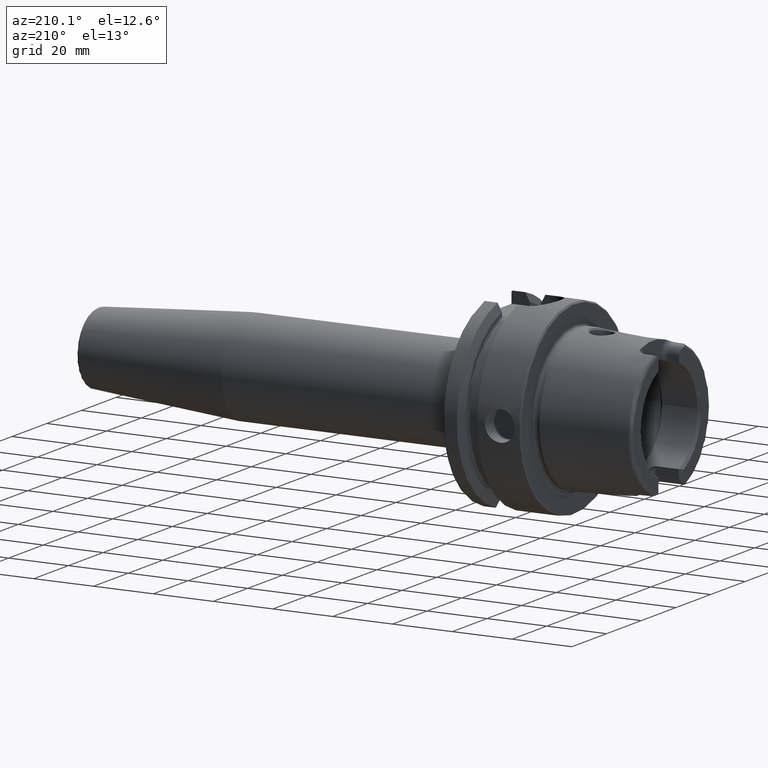
[diagram: clean part render]
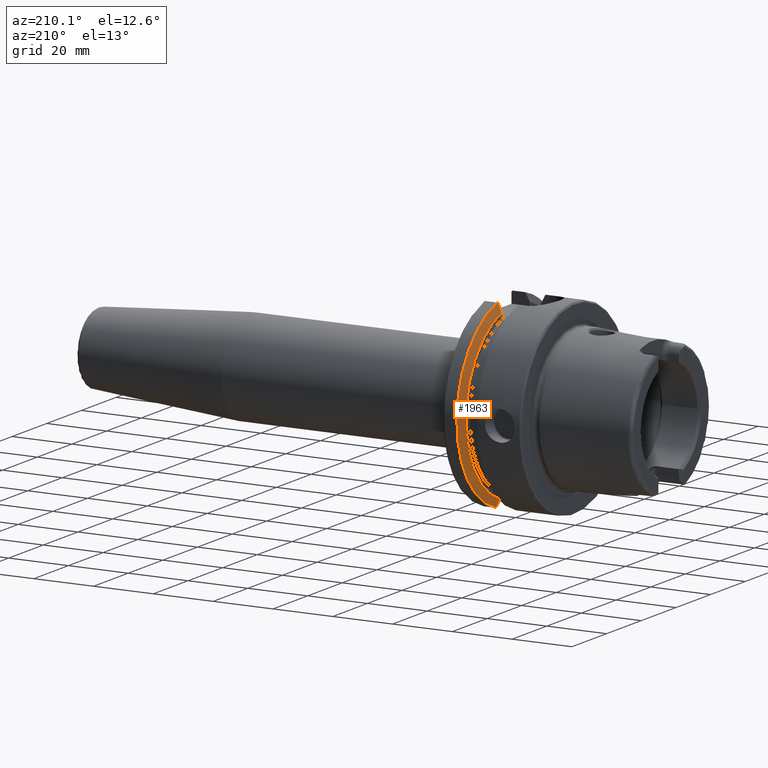
[diagram: same view with one face highlighted and labeled with its STEP entity id]
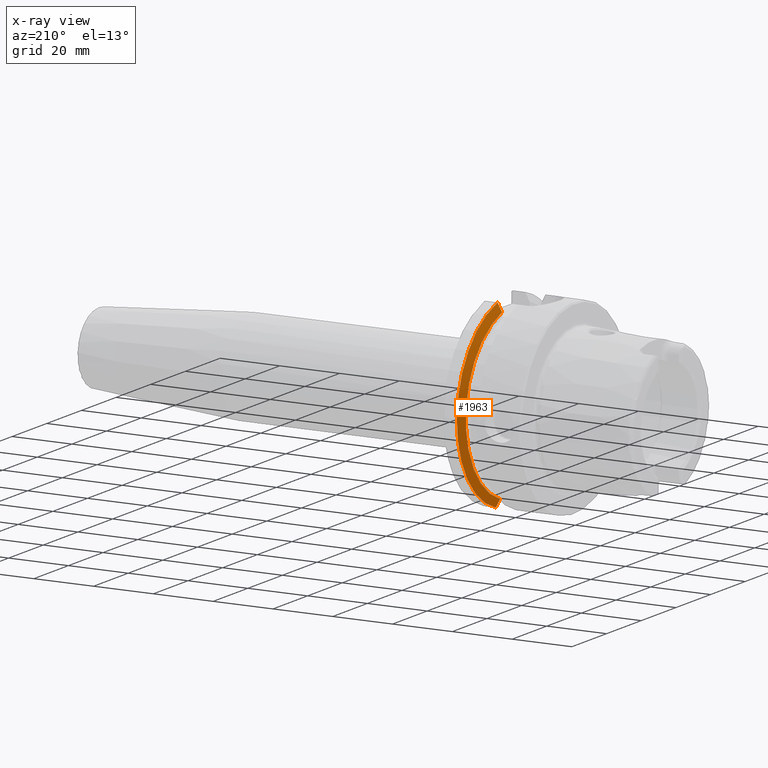
[diagram: x-ray of the same camera — body ghosted, the highlighted face saturated]
A machine part, auxiliary view. The second image highlights one B-rep face of the part: STEP entity #1963.
The next image is the same camera in x-ray: the body ghosted, the highlighted face saturated — about 0% of this face is hidden behind the body in this view.
In plain terms, the highlighted conical surface has half-angle 60 deg.
Its self-contained STEP definition (entity closure, byte-faithful):
#24=(
BOUNDED_CURVE()
B_SPLINE_CURVE(2,(#3855,#3856,#3857),.UNSPECIFIED.,.F.,.F.)
B_SPLINE_CURVE_WITH_KNOTS((3,3),(0.,0.311314369989023),.UNSPECIFIED.)
CURVE()
GEOMETRIC_REPRESENTATION_ITEM()
RATIONAL_B_SPLINE_CURVE((1.,1.00102053193238,1.))
REPRESENTATION_ITEM('')
);
#27=(
BOUNDED_CURVE()
B_SPLINE_CURVE(2,(#4052,#4053,#4054),.UNSPECIFIED.,.F.,.F.)
B_SPLINE_CURVE_WITH_KNOTS((3,3),(0.,0.308905667770379),.UNSPECIFIED.)
CURVE()
GEOMETRIC_REPRESENTATION_ITEM()
RATIONAL_B_SPLINE_CURVE((1.,1.00099999355179,1.))
REPRESENTATION_ITEM('')
);
#102=CONICAL_SURFACE('',#2177,30.1987976320958,1.0471975511966);
#249=FACE_OUTER_BOUND('',#369,.T.);
#369=EDGE_LOOP('',(#1598,#1599,#1600,#1601));
#701=CIRCLE('',#2170,31.5);
#705=CIRCLE('',#2178,28.8975952641916);
#884=VERTEX_POINT('',#3852);
#885=VERTEX_POINT('',#3854);
#911=VERTEX_POINT('',#4036);
#914=VERTEX_POINT('',#4050);
#1125=EDGE_CURVE('',#885,#884,#24,.T.);
#1165=EDGE_CURVE('',#885,#911,#701,.T.);
#1172=EDGE_CURVE('',#884,#914,#705,.T.);
#1173=EDGE_CURVE('',#914,#911,#27,.T.);
#1598=ORIENTED_EDGE('',*,*,#1125,.T.);
#1599=ORIENTED_EDGE('',*,*,#1172,.T.);
#1600=ORIENTED_EDGE('',*,*,#1173,.T.);
#1601=ORIENTED_EDGE('',*,*,#1165,.F.);
#1963=ADVANCED_FACE('',(#249),#102,.T.);
#2170=AXIS2_PLACEMENT_3D('',#4037,#2621,#2622);
#2177=AXIS2_PLACEMENT_3D('',#4049,#2638,#2639);
#2178=AXIS2_PLACEMENT_3D('',#4051,#2640,#2641);
#2621=DIRECTION('center_axis',(1.,0.,0.));
#2622=DIRECTION('ref_axis',(0.,0.,-1.));
#2638=DIRECTION('center_axis',(1.,0.,0.));
#2639=DIRECTION('ref_axis',(0.,1.,0.));
#2640=DIRECTION('center_axis',(1.,0.,0.));
#2641=DIRECTION('ref_axis',(0.,0.,-1.));
#3852=CARTESIAN_POINT('',(19.875,9.,-27.4603534582684));
#3854=CARTESIAN_POINT('',(21.3774990747593,9.,-30.1869176962472));
#3855=CARTESIAN_POINT('Ctrl Pts',(21.3774990747593,9.,-30.1869176962472));
#3856=CARTESIAN_POINT('Ctrl Pts',(20.5907174110267,9.,-28.7648946319029));
#3857=CARTESIAN_POINT('Ctrl Pts',(19.875,9.,-27.4603534582684));
#4036=CARTESIAN_POINT('',(21.3774990747593,8.,30.4671954731642));
#4037=CARTESIAN_POINT('Origin',(21.3774990747593,0.,0.));
#4049=CARTESIAN_POINT('Origin',(20.6262495373797,0.,0.));
#4050=CARTESIAN_POINT('',(19.875,8.,27.7681654426977));
#4051=CARTESIAN_POINT('Origin',(19.875,0.,0.));
#4052=CARTESIAN_POINT('Ctrl Pts',(19.875,8.,27.7681654426977));
#4053=CARTESIAN_POINT('Ctrl Pts',(20.5914314297926,8.,29.0595327079868));
#4054=CARTESIAN_POINT('Ctrl Pts',(21.3774990747593,8.,30.4671954731642));